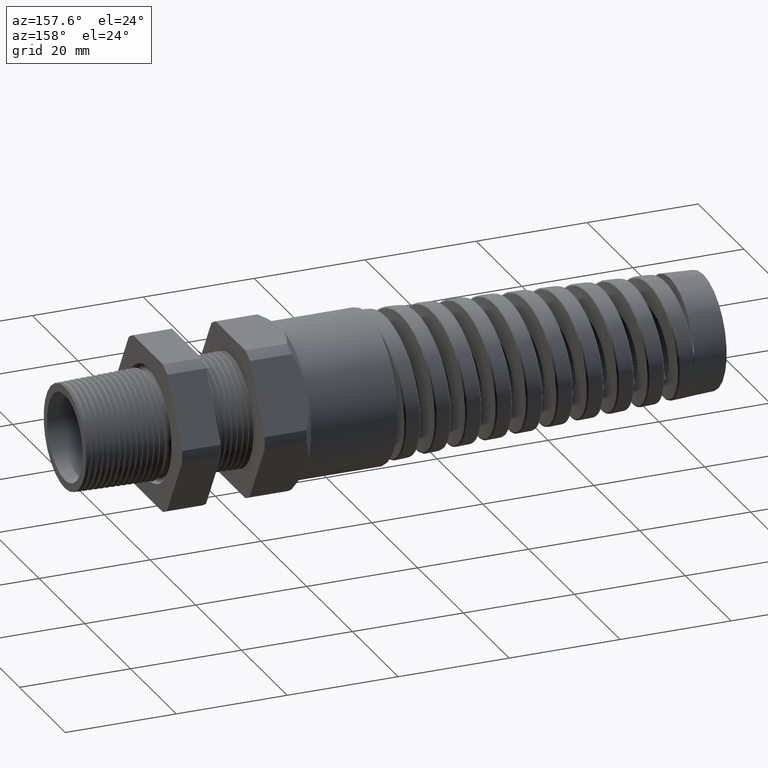
[diagram: clean part render]
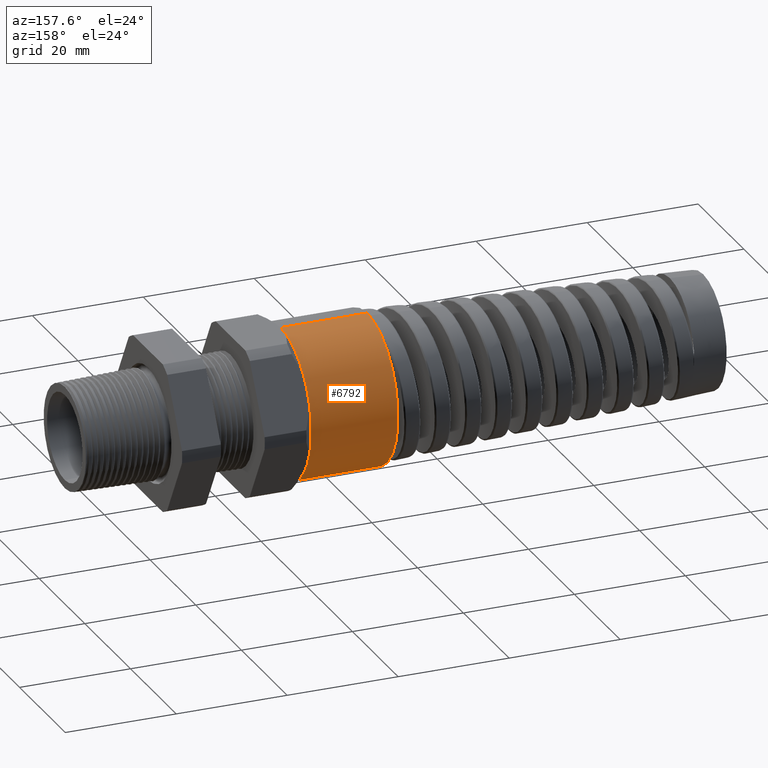
[diagram: same view with one face highlighted and labeled with its STEP entity id]
A machine part, auxiliary view. The second image highlights one B-rep face of the part: STEP entity #6792.
In plain terms, the highlighted cylindrical surface (partial cylindrical patch) has radius 13.462 mm, axis along (1, -0, -0).
Its self-contained STEP definition (entity closure, byte-faithful):
#6770 = ORIENTED_EDGE ( 'NONE', *, *, #6771, .T. ) ;
#6771 = EDGE_CURVE ( 'NONE', #6796, #6798, #12195, .T. ) ;
#6772 = ORIENTED_EDGE ( 'NONE', *, *, #6773, .F. ) ;
#6773 = EDGE_CURVE ( 'NONE', #6774, #6798, #12191, .T. ) ;
#6774 = VERTEX_POINT ( 'NONE', #12186 ) ;
#6775 = ORIENTED_EDGE ( 'NONE', *, *, #6776, .F. ) ;
#6776 = EDGE_CURVE ( 'NONE', #6777, #6774, #12185, .T. ) ;
#6777 = VERTEX_POINT ( 'NONE', #12180 ) ;
#6778 = ORIENTED_EDGE ( 'NONE', *, *, #6779, .F. ) ;
#6779 = EDGE_CURVE ( 'NONE', #6780, #6777, #12179, .T. ) ;
#6780 = VERTEX_POINT ( 'NONE', #12240 ) ;
#6781 = ORIENTED_EDGE ( 'NONE', *, *, #6782, .F. ) ;
#6782 = EDGE_CURVE ( 'NONE', #6797, #6780, #12239, .T. ) ;
#6792 = ADVANCED_FACE ( 'NONE', ( #12219 ), #12216, .T. ) ;
#6793 = EDGE_LOOP ( 'NONE', ( #6794, #6770, #6772, #6775, #6778, #6781 ) ) ;
#6794 = ORIENTED_EDGE ( 'NONE', *, *, #6795, .F. ) ;
#6795 = EDGE_CURVE ( 'NONE', #6796, #6797, #12275, .T. ) ;
#6796 = VERTEX_POINT ( 'NONE', #12270 ) ;
#6797 = VERTEX_POINT ( 'NONE', #12269 ) ;
#6798 = VERTEX_POINT ( 'NONE', #12268 ) ;
#12179 = CIRCLE ( 'NONE', #12244, 0.5299999999999999200 ) ;
#12180 = CARTESIAN_POINT ( 'NONE',  ( -1.250551181102362200, 0.4589934640057525800, -0.2650000000000002400 ) ) ;
#12181 = DIRECTION ( 'NONE',  ( 0.0000000000000000000, 0.0000000000000000000, -1.000000000000000000 ) ) ;
#12182 = DIRECTION ( 'NONE',  ( 1.000000000000000000, -0.0000000000000000000, -0.0000000000000000000 ) ) ;
#12183 = CARTESIAN_POINT ( 'NONE',  ( -1.250551181102362200, 0.0000000000000000000, 0.0000000000000000000 ) ) ;
#12184 = AXIS2_PLACEMENT_3D ( 'NONE', #12183, #12182, #12181 ) ;
#12185 = CIRCLE ( 'NONE', #12184, 0.5299999999999999200 ) ;
#12186 = CARTESIAN_POINT ( 'NONE',  ( -1.250551181102362200, 0.4589934640057525300, 0.2650000000000001200 ) ) ;
#12187 = DIRECTION ( 'NONE',  ( 0.0000000000000000000, 0.0000000000000000000, -1.000000000000000000 ) ) ;
#12188 = DIRECTION ( 'NONE',  ( 1.000000000000000000, -0.0000000000000000000, -0.0000000000000000000 ) ) ;
#12189 = CARTESIAN_POINT ( 'NONE',  ( -1.250551181102362200, 0.0000000000000000000, 0.0000000000000000000 ) ) ;
#12190 = AXIS2_PLACEMENT_3D ( 'NONE', #12189, #12188, #12187 ) ;
#12191 = CIRCLE ( 'NONE', #12190, 0.5299999999999999200 ) ;
#12192 = DIRECTION ( 'NONE',  ( 1.000000000000000000, -0.0000000000000000000, -0.0000000000000000000 ) ) ;
#12193 = VECTOR ( 'NONE', #12192, 39.37007874015748100 ) ;
#12194 = CARTESIAN_POINT ( 'NONE',  ( 1.326736918405036800, 6.490628035480971200E-017, 0.5299999999999999200 ) ) ;
#12195 = LINE ( 'NONE', #12194, #12193 ) ;
#12212 = DIRECTION ( 'NONE',  ( 0.0000000000000000000, 0.0000000000000000000, -1.000000000000000000 ) ) ;
#12213 = DIRECTION ( 'NONE',  ( 1.000000000000000000, -0.0000000000000000000, -0.0000000000000000000 ) ) ;
#12214 = CARTESIAN_POINT ( 'NONE',  ( 1.326736918405036800, 0.0000000000000000000, 0.0000000000000000000 ) ) ;
#12215 = AXIS2_PLACEMENT_3D ( 'NONE', #12214, #12213, #12212 ) ;
#12216 = CYLINDRICAL_SURFACE ( 'NONE', #12215, 0.5299999999999999200 ) ;
#12219 = FACE_OUTER_BOUND ( 'NONE', #6793, .T. ) ;
#12236 = DIRECTION ( 'NONE',  ( 1.000000000000000000, -0.0000000000000000000, -0.0000000000000000000 ) ) ;
#12237 = VECTOR ( 'NONE', #12236, 39.37007874015748100 ) ;
#12238 = CARTESIAN_POINT ( 'NONE',  ( 1.326736918405036800, 0.0000000000000000000, -0.5299999999999999200 ) ) ;
#12239 = LINE ( 'NONE', #12238, #12237 ) ;
#12240 = CARTESIAN_POINT ( 'NONE',  ( -1.250551181102362200, 0.0000000000000000000, -0.5300000000000001400 ) ) ;
#12241 = DIRECTION ( 'NONE',  ( 0.0000000000000000000, 0.0000000000000000000, -1.000000000000000000 ) ) ;
#12242 = DIRECTION ( 'NONE',  ( 1.000000000000000000, -0.0000000000000000000, -0.0000000000000000000 ) ) ;
#12243 = CARTESIAN_POINT ( 'NONE',  ( -1.250551181102362200, 0.0000000000000000000, 0.0000000000000000000 ) ) ;
#12244 = AXIS2_PLACEMENT_3D ( 'NONE', #12243, #12242, #12241 ) ;
#12268 = CARTESIAN_POINT ( 'NONE',  ( -1.250551181102362200, 0.0000000000000000000, 0.5299999999999999200 ) ) ;
#12269 = CARTESIAN_POINT ( 'NONE',  ( -1.866159749937225300, 0.0000000000000000000, -0.5299999999999999200 ) ) ;
#12270 = CARTESIAN_POINT ( 'NONE',  ( -1.866159749937225300, 6.490628035480971200E-017, 0.5299999999999999200 ) ) ;
#12271 = DIRECTION ( 'NONE',  ( 0.0000000000000000000, 0.0000000000000000000, 1.000000000000000000 ) ) ;
#12272 = DIRECTION ( 'NONE',  ( -1.000000000000000000, 0.0000000000000000000, 0.0000000000000000000 ) ) ;
#12273 = CARTESIAN_POINT ( 'NONE',  ( -1.866159749937225300, 0.0000000000000000000, 0.0000000000000000000 ) ) ;
#12274 = AXIS2_PLACEMENT_3D ( 'NONE', #12273, #12272, #12271 ) ;
#12275 = CIRCLE ( 'NONE', #12274, 0.5299999999999999200 ) ;